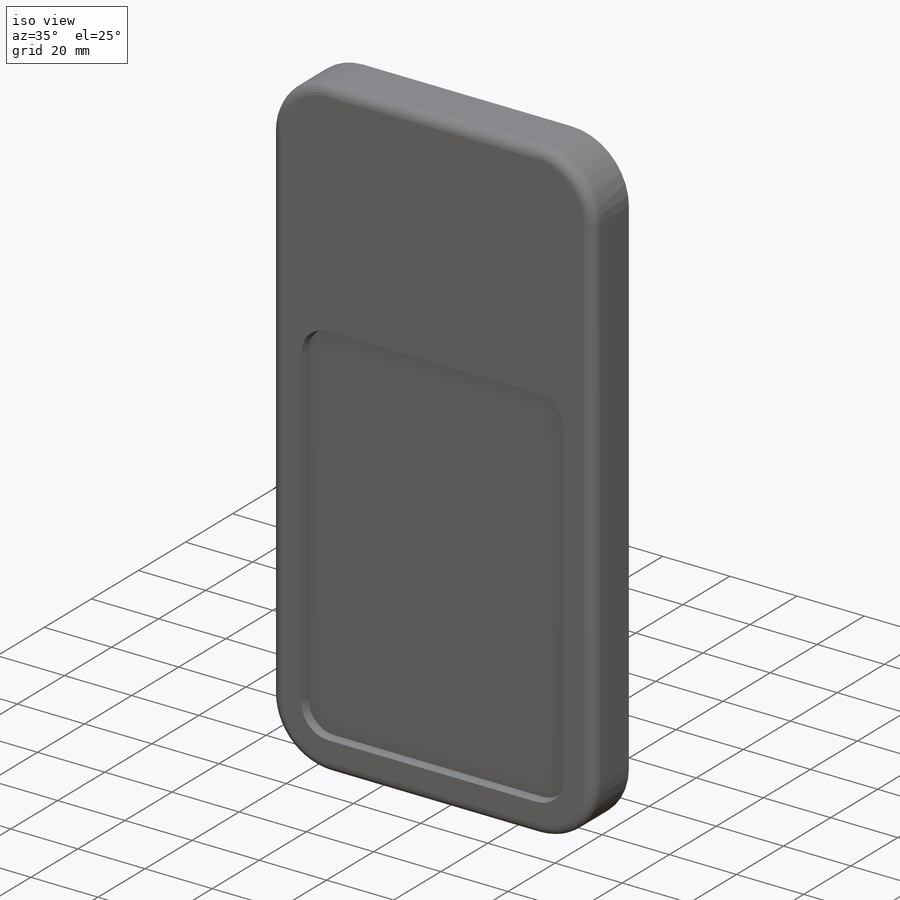
[diagram: iso view]
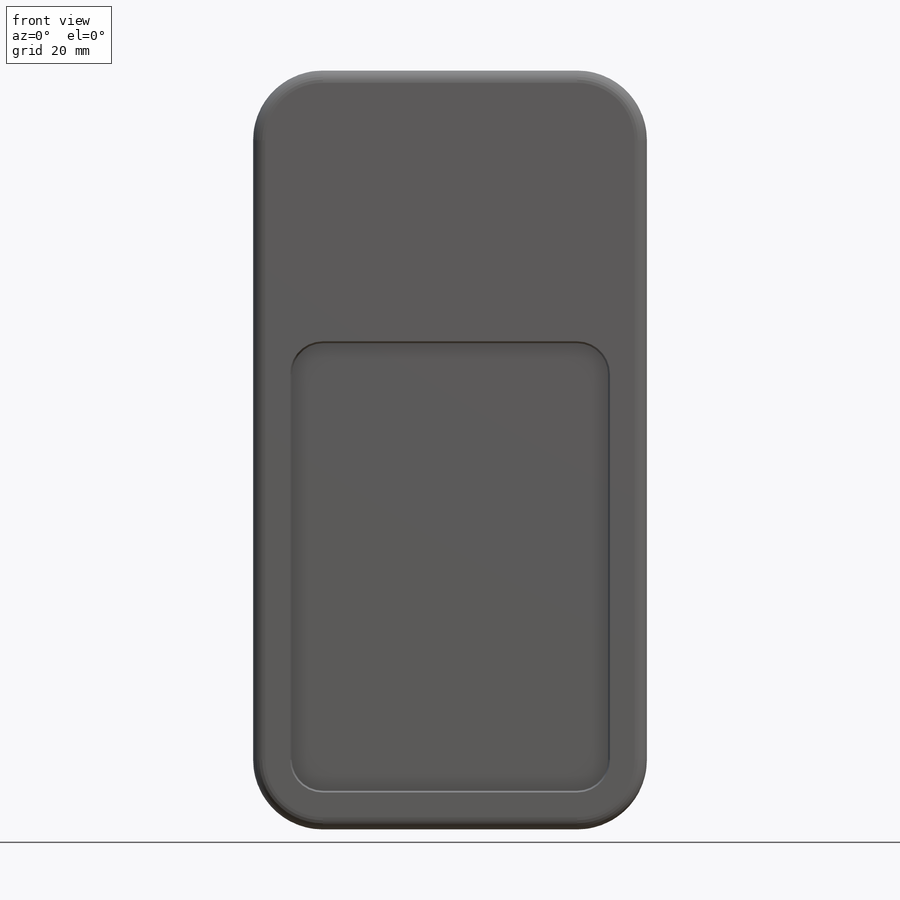
[diagram: front view]
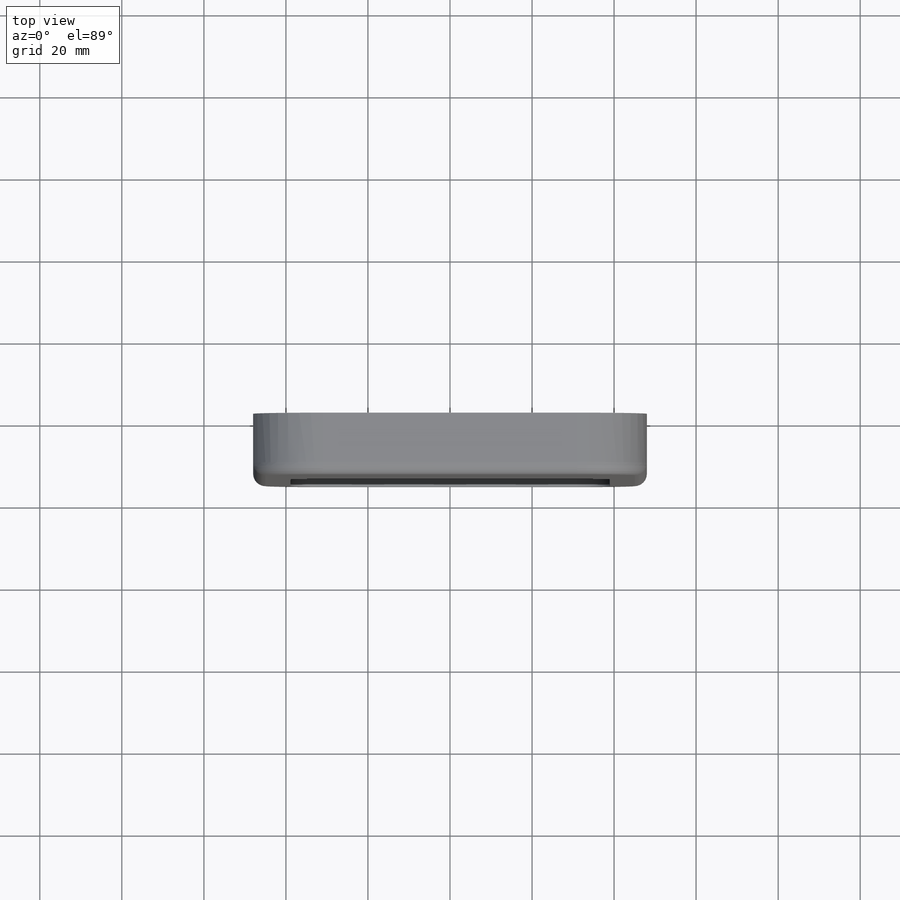
[diagram: top view]
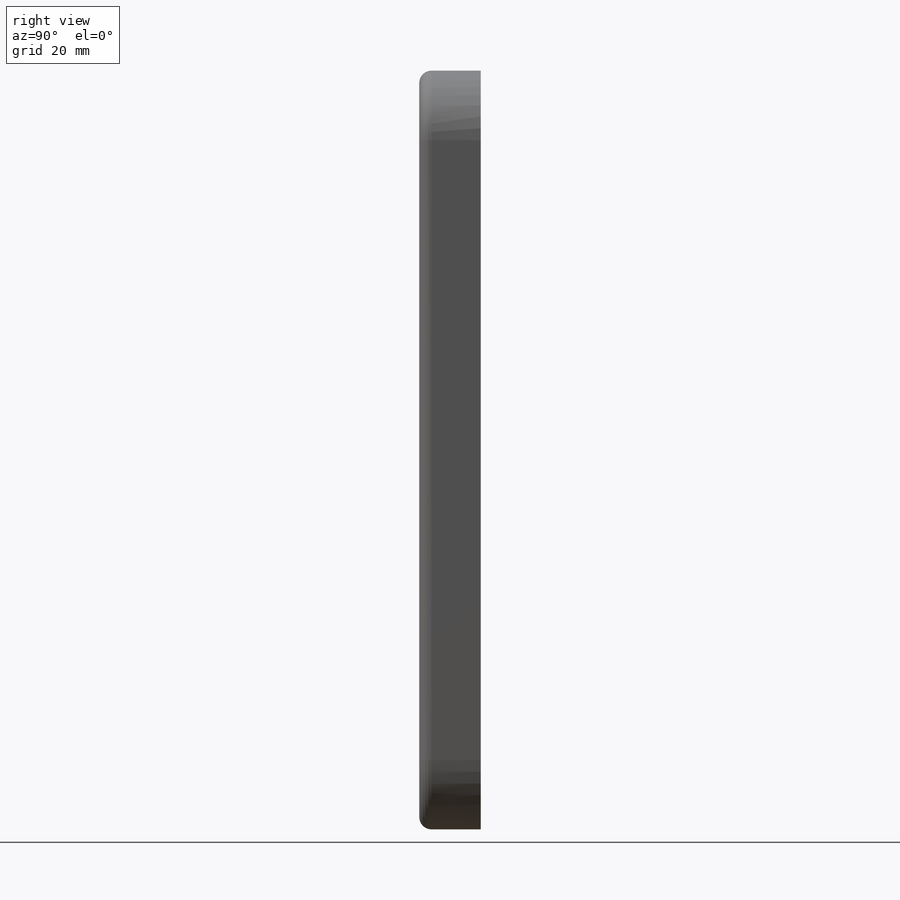
[diagram: right view]
SOLIDWORKS PART (.sldprt)
format: sldprt  version: not decoded by parser v0  size: 241,152 bytes
history: native  units: mm
features: plane x3, sketch x2, material x1, extrude x1, cut_extrude x1, fillet x1, shell x1 (+13 scaffold rows collapsed)
feature tree (23):
  scaffold x13  (default folders/planes/origin — collapsed)
  material  "2024-T4"
  plane  "Спереди"
  plane  "Сверху"
  plane  "Справа"
  sketch  "Эскиз1"  dims[D3=17.0mm D1=96.0mm D2=185.0mm]
  extrude  "Бобышка-Вытянуть1"  Depth=15mm
  sketch  "Эскиз3"  dims[c1.D3=8.0mm c1.D1=9.0mm c1.D2=9.0mm c2.D1=9.0mm c2.D2=110.0mm c2.D4=78.0mm c3.D1=9.0mm]
  cut_extrude  "Вырез-Вытянуть2"  Depth=2.5mm
  fillet  "Скругление1"  Radius=3mm
  shell  "Оболочка1"  Thickness=3.5mm
decode coverage: 6 of 6 modeling features carry decoded parameters
note: suppression state not decoded; provenance and decode notes live in map.json
